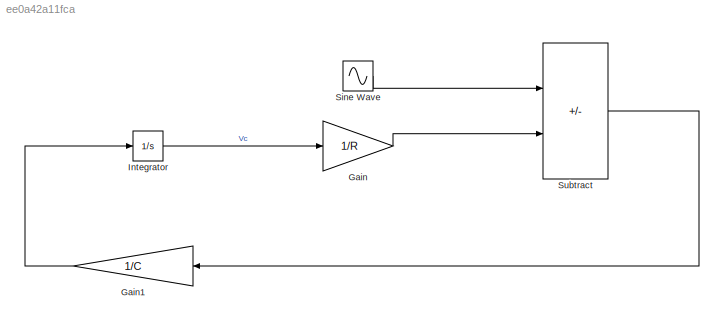
MODEL slx_ee0a42a11fca
KIND model
CONFIG AbsTol = auto
CONFIG EnableMultiTasking = off
CONFIG FixedStep = auto
CONFIG MaxStep = 1e-3
CONFIG MinStep = auto
CONFIG RelTol = 1e-3
CONFIG SampleTimeConstraint = Unconstrained
CONFIG SolverName = VariableStepAuto
CONFIG StartTime = 0.0
CONFIG StopTime = 10.0
BLOCK [Gain] Gain
  Gain = 1/R
BLOCK [Gain] Gain1
  Gain = 1/C
BLOCK [Integrator] Integrator
BLOCK [Sin] Sine Wave
  Amplitude = 5
  Frequency = 2*pi
  SampleTime = 0
BLOCK [Sum] Subtract
  IconShape = rectangular
  Inputs = +-
LINE Gain1:1 -> Integrator:1
LINE Gain:1 -> Subtract:2
LINE Integrator:1 -> Gain:1
LINE Sine Wave:1 -> Subtract:1
LINE Subtract:1 -> Gain1:1
